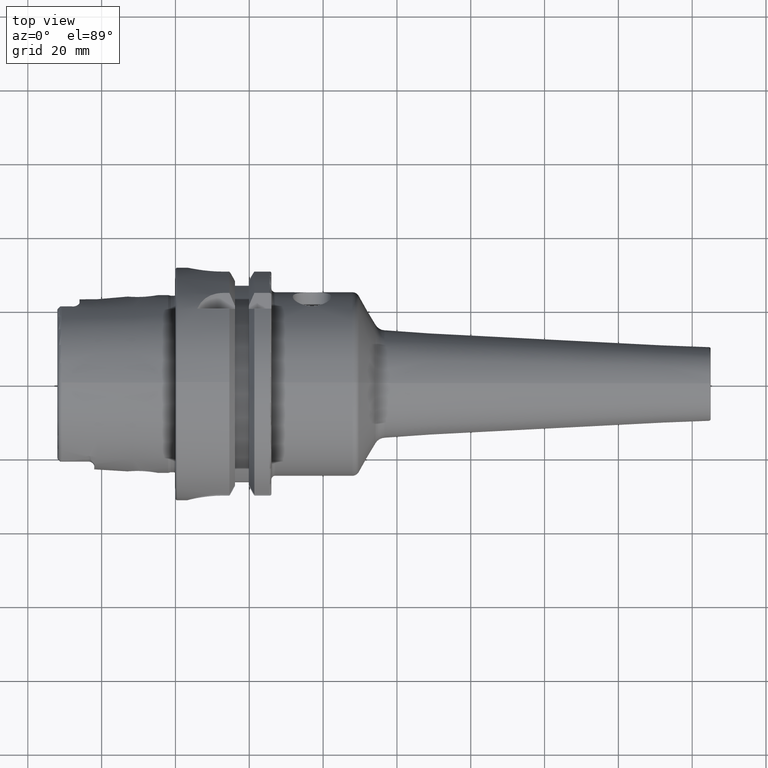
[diagram: clean part render]
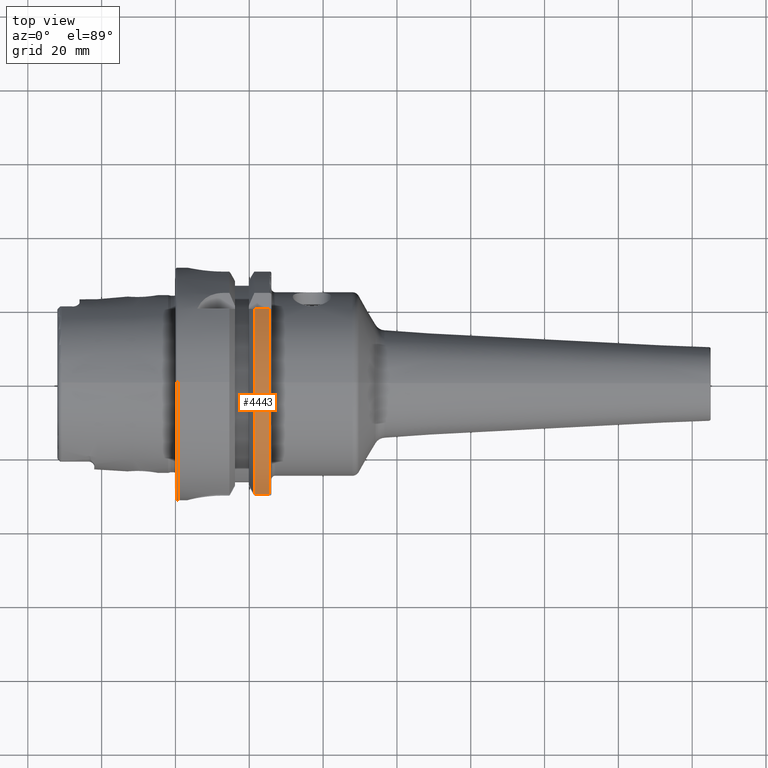
[diagram: same view with one face highlighted and labeled with its STEP entity id]
A machine part, top view. The second image highlights one B-rep face of the part: STEP entity #4443.
In plain terms, the highlighted cylindrical surface (partial cylindrical patch) has radius 31.5 mm, axis along (1, 0, 0).
Its self-contained STEP definition (entity closure, byte-faithful):
#1303=DIRECTION('',(1.E0,0.E0,0.E0));
#1304=VECTOR('',#1303,4.122500945915E0);
#1305=CARTESIAN_POINT('',(2.137749905409E1,-3.007314630073E1,9.373146300730E0));
#1306=LINE('',#1305,#1304);
#1307=DIRECTION('',(1.E0,0.E0,0.E0));
#1308=VECTOR('',#1307,4.122500945915E0);
#1309=CARTESIAN_POINT('',(2.137749905409E1,2.E1,2.433618704728E1));
#1310=LINE('',#1309,#1308);
#1445=CARTESIAN_POINT('',(2.55E1,-3.007314630073E1,9.373146300730E0));
#1787=CARTESIAN_POINT('',(2.55E1,0.E0,0.E0));
#1788=DIRECTION('',(-1.E0,0.E0,0.E0));
#1789=DIRECTION('',(0.E0,-9.547030571660E-1,2.975602000232E-1));
#1790=AXIS2_PLACEMENT_3D('',#1787,#1788,#1789);
#1806=CARTESIAN_POINT('',(2.55E1,2.E1,2.433618704728E1));
#1992=CARTESIAN_POINT('',(2.137749905409E1,-3.007314630073E1,9.373146300730E0));
#2015=CARTESIAN_POINT('',(2.137749905409E1,2.E1,2.433618704728E1));
#2017=CARTESIAN_POINT('',(2.137749905409E1,0.E0,0.E0));
#2018=DIRECTION('',(1.E0,0.E0,0.E0));
#2019=DIRECTION('',(0.E0,6.349206349206E-1,7.725773665802E-1));
#2020=AXIS2_PLACEMENT_3D('',#2017,#2018,#2019);
#2633=VERTEX_POINT('',#2015);
#2825=VERTEX_POINT('',#1992);
#2873=VERTEX_POINT('',#1806);
#2877=VERTEX_POINT('',#1445);
#4428=CARTESIAN_POINT('',(0.E0,0.E0,0.E0));
#4429=DIRECTION('',(1.E0,0.E0,0.E0));
#4430=DIRECTION('',(0.E0,0.E0,1.E0));
#4431=AXIS2_PLACEMENT_3D('',#4428,#4429,#4430);
#4432=CYLINDRICAL_SURFACE('',#4431,3.15E1);
#4434=ORIENTED_EDGE('',*,*,#4433,.F.);
#4436=ORIENTED_EDGE('',*,*,#4435,.F.);
#4438=ORIENTED_EDGE('',*,*,#4437,.F.);
#4440=ORIENTED_EDGE('',*,*,#4439,.T.);
#4441=EDGE_LOOP('',(#4434,#4436,#4438,#4440));
#4442=FACE_OUTER_BOUND('',#4441,.F.);
#4443=ADVANCED_FACE('',(#4442),#4432,.T.);
#1791=CIRCLE('',#1790,3.15E1);
#2021=CIRCLE('',#2020,3.15E1);
#4433=EDGE_CURVE('',#2877,#2873,#1791,.T.);
#4435=EDGE_CURVE('',#2825,#2877,#1306,.T.);
#4437=EDGE_CURVE('',#2633,#2825,#2021,.T.);
#4439=EDGE_CURVE('',#2633,#2873,#1310,.T.);